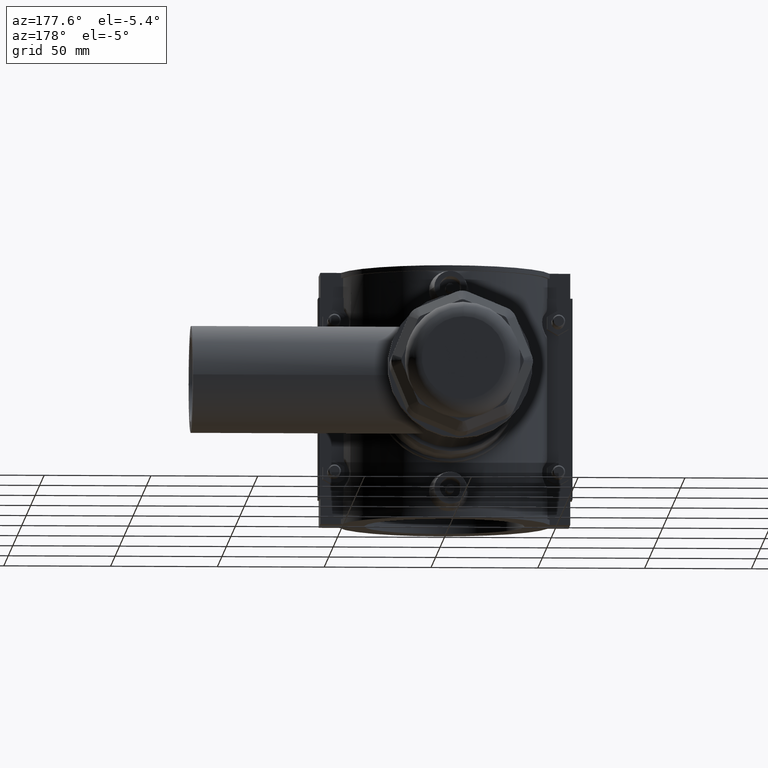
[diagram: clean part render]
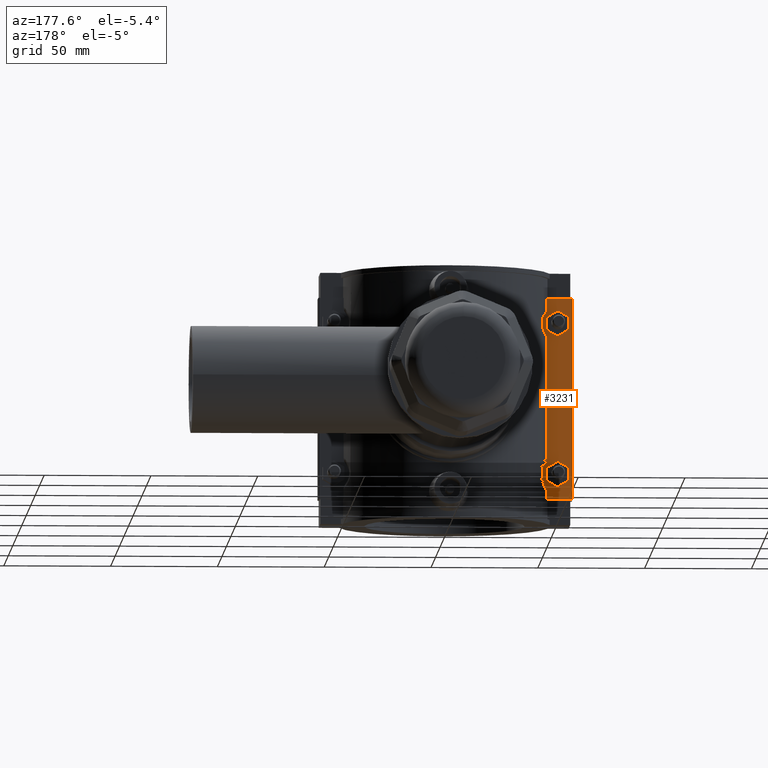
[diagram: same view with one face highlighted and labeled with its STEP entity id]
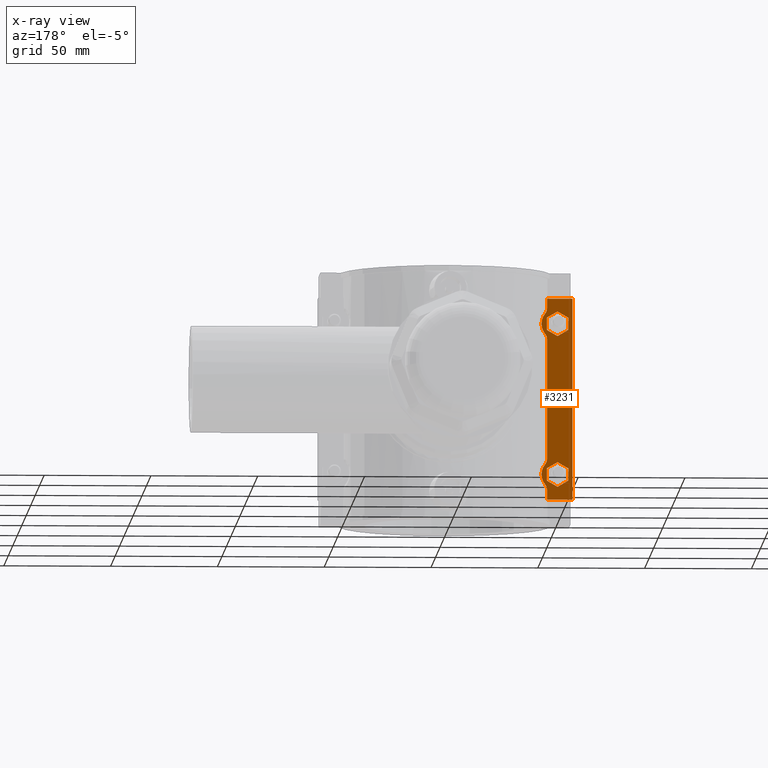
[diagram: x-ray of the same camera — body ghosted, the highlighted face saturated]
A machine part, auxiliary view. The second image highlights one B-rep face of the part: STEP entity #3231.
The next image is the same camera in x-ray: the body ghosted, the highlighted face saturated — about 0% of this face is hidden behind the body in this view.
In plain terms, the highlighted planar face has unit normal (-0, -1, 0).
Its self-contained STEP definition (entity closure, byte-faithful):
#137=LINE('',#5571,#424);
#138=LINE('',#5587,#425);
#139=LINE('',#5601,#426);
#156=LINE('',#5765,#443);
#157=LINE('',#5768,#444);
#161=LINE('',#5775,#448);
#162=LINE('',#5808,#449);
#163=LINE('',#5810,#450);
#164=LINE('',#5812,#451);
#165=LINE('',#5814,#452);
#166=LINE('',#5816,#453);
#167=LINE('',#5817,#454);
#168=LINE('',#5820,#455);
#169=LINE('',#5822,#456);
#170=LINE('',#5824,#457);
#171=LINE('',#5826,#458);
#172=LINE('',#5828,#459);
#173=LINE('',#5829,#460);
#424=VECTOR('',#4034,4.46607892172985);
#425=VECTOR('',#4035,56.1321578434597);
#426=VECTOR('',#4036,4.46607892172984);
#443=VECTOR('',#4069,11.8667986064342);
#444=VECTOR('',#4072,11.8667986064342);
#448=VECTOR('',#4078,94.4);
#449=VECTOR('',#4083,5.77350269189626);
#450=VECTOR('',#4084,5.77350269189626);
#451=VECTOR('',#4085,5.77350269189625);
#452=VECTOR('',#4086,5.77350269189626);
#453=VECTOR('',#4087,5.77350269189625);
#454=VECTOR('',#4088,5.77350269189626);
#455=VECTOR('',#4089,5.77350269189627);
#456=VECTOR('',#4090,5.77350269189626);
#457=VECTOR('',#4091,5.77350269189626);
#458=VECTOR('',#4092,5.77350269189626);
#459=VECTOR('',#4093,5.77350269189626);
#460=VECTOR('',#4094,5.77350269189624);
#644=FACE_BOUND('',#1066,.T.);
#645=FACE_BOUND('',#1067,.T.);
#699=B_SPLINE_CURVE_WITH_KNOTS('',3,(#5777,#5778,#5779,#5780,#5781,#5782),
 .UNSPECIFIED.,.F.,.F.,(4,2,4),(-0.281341691516308,-0.141623354296894,0.),
 .UNSPECIFIED.);
#700=B_SPLINE_CURVE_WITH_KNOTS('',3,(#5785,#5786,#5787,#5788,#5789,#5790),
 .UNSPECIFIED.,.F.,.F.,(4,2,4),(-0.281664898277297,-0.139591039339696,0.),
 .UNSPECIFIED.);
#701=B_SPLINE_CURVE_WITH_KNOTS('',3,(#5792,#5793,#5794,#5795,#5796,#5797),
 .UNSPECIFIED.,.F.,.F.,(4,2,4),(-0.281341691516304,-0.141623354296958,0.),
 .UNSPECIFIED.);
#702=B_SPLINE_CURVE_WITH_KNOTS('',3,(#5800,#5801,#5802,#5803,#5804,#5805),
 .UNSPECIFIED.,.F.,.F.,(4,2,4),(-0.281664898277248,-0.139591039340112,0.),
 .UNSPECIFIED.);
#851=FACE_OUTER_BOUND('',#1065,.T.);
#1065=EDGE_LOOP('',(#2464,#2465,#2466,#2467,#2468,#2469,#2470,#2471,#2472,
#2473,#2474,#2475));
#1066=EDGE_LOOP('',(#2476,#2477,#2478,#2479,#2480,#2481));
#1067=EDGE_LOOP('',(#2482,#2483,#2484,#2485,#2486,#2487));
#1282=CIRCLE('',#3497,7.5);
#1283=CIRCLE('',#3498,7.5);
#1459=VERTEX_POINT('',#5568);
#1460=VERTEX_POINT('',#5570);
#1461=VERTEX_POINT('',#5572);
#1462=VERTEX_POINT('',#5586);
#1463=VERTEX_POINT('',#5588);
#1464=VERTEX_POINT('',#5600);
#1487=VERTEX_POINT('',#5763);
#1488=VERTEX_POINT('',#5767);
#1491=VERTEX_POINT('',#5776);
#1492=VERTEX_POINT('',#5783);
#1493=VERTEX_POINT('',#5791);
#1494=VERTEX_POINT('',#5798);
#1495=VERTEX_POINT('',#5806);
#1496=VERTEX_POINT('',#5807);
#1497=VERTEX_POINT('',#5809);
#1498=VERTEX_POINT('',#5811);
#1499=VERTEX_POINT('',#5813);
#1500=VERTEX_POINT('',#5815);
#1501=VERTEX_POINT('',#5818);
#1502=VERTEX_POINT('',#5819);
#1503=VERTEX_POINT('',#5821);
#1504=VERTEX_POINT('',#5823);
#1505=VERTEX_POINT('',#5825);
#1506=VERTEX_POINT('',#5827);
#1819=EDGE_CURVE('',#1459,#1460,#137,.T.);
#1821=EDGE_CURVE('',#1461,#1462,#138,.T.);
#1823=EDGE_CURVE('',#1463,#1464,#139,.T.);
#1851=EDGE_CURVE('',#1459,#1487,#156,.T.);
#1852=EDGE_CURVE('',#1488,#1464,#157,.T.);
#1856=EDGE_CURVE('',#1487,#1488,#161,.T.);
#1857=EDGE_CURVE('',#1491,#1463,#699,.T.);
#1858=EDGE_CURVE('',#1492,#1491,#1282,.T.);
#1859=EDGE_CURVE('',#1462,#1492,#700,.T.);
#1860=EDGE_CURVE('',#1493,#1461,#701,.T.);
#1861=EDGE_CURVE('',#1494,#1493,#1283,.T.);
#1862=EDGE_CURVE('',#1460,#1494,#702,.T.);
#1863=EDGE_CURVE('',#1495,#1496,#162,.T.);
#1864=EDGE_CURVE('',#1497,#1495,#163,.T.);
#1865=EDGE_CURVE('',#1498,#1497,#164,.T.);
#1866=EDGE_CURVE('',#1499,#1498,#165,.T.);
#1867=EDGE_CURVE('',#1500,#1499,#166,.T.);
#1868=EDGE_CURVE('',#1496,#1500,#167,.T.);
#1869=EDGE_CURVE('',#1501,#1502,#168,.T.);
#1870=EDGE_CURVE('',#1503,#1501,#169,.T.);
#1871=EDGE_CURVE('',#1504,#1503,#170,.T.);
#1872=EDGE_CURVE('',#1505,#1504,#171,.T.);
#1873=EDGE_CURVE('',#1506,#1505,#172,.T.);
#1874=EDGE_CURVE('',#1502,#1506,#173,.T.);
#2464=ORIENTED_EDGE('',*,*,#1819,.F.);
#2465=ORIENTED_EDGE('',*,*,#1851,.T.);
#2466=ORIENTED_EDGE('',*,*,#1856,.T.);
#2467=ORIENTED_EDGE('',*,*,#1852,.T.);
#2468=ORIENTED_EDGE('',*,*,#1823,.F.);
#2469=ORIENTED_EDGE('',*,*,#1857,.F.);
#2470=ORIENTED_EDGE('',*,*,#1858,.F.);
#2471=ORIENTED_EDGE('',*,*,#1859,.F.);
#2472=ORIENTED_EDGE('',*,*,#1821,.F.);
#2473=ORIENTED_EDGE('',*,*,#1860,.F.);
#2474=ORIENTED_EDGE('',*,*,#1861,.F.);
#2475=ORIENTED_EDGE('',*,*,#1862,.F.);
#2476=ORIENTED_EDGE('',*,*,#1863,.F.);
#2477=ORIENTED_EDGE('',*,*,#1864,.F.);
#2478=ORIENTED_EDGE('',*,*,#1865,.F.);
#2479=ORIENTED_EDGE('',*,*,#1866,.F.);
#2480=ORIENTED_EDGE('',*,*,#1867,.F.);
#2481=ORIENTED_EDGE('',*,*,#1868,.F.);
#2482=ORIENTED_EDGE('',*,*,#1869,.F.);
#2483=ORIENTED_EDGE('',*,*,#1870,.F.);
#2484=ORIENTED_EDGE('',*,*,#1871,.F.);
#2485=ORIENTED_EDGE('',*,*,#1872,.F.);
#2486=ORIENTED_EDGE('',*,*,#1873,.F.);
#2487=ORIENTED_EDGE('',*,*,#1874,.F.);
#3078=PLANE('',#3496);
#3231=ADVANCED_FACE('',(#851,#644,#645),#3078,.F.);
#3496=AXIS2_PLACEMENT_3D('',#5774,#4076,#4077);
#3497=AXIS2_PLACEMENT_3D('',#5784,#4079,#4080);
#3498=AXIS2_PLACEMENT_3D('',#5799,#4081,#4082);
#4034=DIRECTION('',(0.,0.,1.));
#4035=DIRECTION('',(0.,0.,1.));
#4036=DIRECTION('',(0.,0.,1.));
#4069=DIRECTION('',(-1.,2.21752824892278E-16,0.));
#4072=DIRECTION('',(1.,-2.21752824892278E-16,0.));
#4076=DIRECTION('center_axis',(-2.21752824892278E-16,-1.,0.));
#4077=DIRECTION('ref_axis',(1.,-1.77635683940025E-16,0.));
#4078=DIRECTION('',(0.,0.,1.));
#4079=DIRECTION('center_axis',(-2.21752824892278E-16,-1.,0.));
#4080=DIRECTION('ref_axis',(1.,0.,0.));
#4081=DIRECTION('center_axis',(-2.21752824892278E-16,-1.,0.));
#4082=DIRECTION('ref_axis',(1.,0.,0.));
#4083=DIRECTION('',(-0.866025403784439,1.92043579717675E-16,0.5));
#4084=DIRECTION('',(-0.866025403784438,1.92043579717675E-16,-0.5));
#4085=DIRECTION('',(0.,0.,-1.));
#4086=DIRECTION('',(0.866025403784439,-1.92043579717675E-16,-0.5));
#4087=DIRECTION('',(0.866025403784439,-1.92043579717675E-16,0.499999999999999));
#4088=DIRECTION('',(0.,0.,1.));
#4089=DIRECTION('',(-0.866025403784439,1.92043579717675E-16,-0.499999999999999));
#4090=DIRECTION('',(0.,0.,-1.));
#4091=DIRECTION('',(0.866025403784438,-1.92043579717675E-16,-0.5));
#4092=DIRECTION('',(0.866025403784438,-1.92043579717675E-16,0.5));
#4093=DIRECTION('',(0.,0.,1.));
#4094=DIRECTION('',(-0.866025403784438,1.92043579717675E-16,0.500000000000002));
#5568=CARTESIAN_POINT('',(-47.6332013935658,10.3750000000001,-47.2));
#5570=CARTESIAN_POINT('',(-47.6332013935658,10.3750000000001,-42.7339210782702));
#5571=CARTESIAN_POINT('',(-47.6332013935658,10.3750000000001,0.));
#5572=CARTESIAN_POINT('',(-47.6332013935658,10.3750000000001,-28.0660789217298));
#5586=CARTESIAN_POINT('',(-47.6332013935658,10.3750000000001,28.0660789217298));
#5587=CARTESIAN_POINT('',(-47.6332013935658,10.3750000000001,0.));
#5588=CARTESIAN_POINT('',(-47.6332013935658,10.3750000000001,42.7339210782702));
#5600=CARTESIAN_POINT('',(-47.6332013935658,10.3750000000001,47.2));
#5601=CARTESIAN_POINT('',(-47.6332013935658,10.3750000000001,0.));
#5763=CARTESIAN_POINT('',(-59.5,10.3750000000001,-47.2));
#5765=CARTESIAN_POINT('',(-59.5,10.3750000000001,-47.2));
#5767=CARTESIAN_POINT('',(-59.5,10.3750000000001,47.2));
#5768=CARTESIAN_POINT('',(-59.5,10.3750000000001,47.2));
#5774=CARTESIAN_POINT('Origin',(-59.5,10.3750000000001,0.));
#5775=CARTESIAN_POINT('',(-59.5,10.3750000000001,0.));
#5776=CARTESIAN_POINT('',(-46.6917749070217,10.3750000000001,40.1449469195448));
#5777=CARTESIAN_POINT('Ctrl Pts',(-46.6917749070217,10.3750000000001,40.1449469195447));
#5778=CARTESIAN_POINT('Ctrl Pts',(-46.9867600894085,10.3750000000001,40.5060342757254));
#5779=CARTESIAN_POINT('Ctrl Pts',(-47.2216357502822,10.3750000000373,40.9133637162786));
#5780=CARTESIAN_POINT('Ctrl Pts',(-47.5469390920101,10.3750000000373,41.7937134726198));
#5781=CARTESIAN_POINT('Ctrl Pts',(-47.6332013935658,10.3750000000001,42.2618432306138));
#5782=CARTESIAN_POINT('Ctrl Pts',(-47.6332013935658,10.3750000000001,42.7339210782702));
#5783=CARTESIAN_POINT('',(-46.6917749070217,10.3750000000001,30.6550530804553));
#5784=CARTESIAN_POINT('Origin',(-52.5,10.3750000000001,35.4));
#5785=CARTESIAN_POINT('Ctrl Pts',(-47.6332013935658,10.3750000000001,28.0660789217298));
#5786=CARTESIAN_POINT('Ctrl Pts',(-47.6332013935658,10.3750000000001,28.5391150085961));
#5787=CARTESIAN_POINT('Ctrl Pts',(-47.5465890169901,10.3749999997142,29.008179282616));
#5788=CARTESIAN_POINT('Ctrl Pts',(-47.2206731564448,10.3749999997142,29.8883067758346));
#5789=CARTESIAN_POINT('Ctrl Pts',(-46.9861536057377,10.3750000000001,30.2947081127007));
#5790=CARTESIAN_POINT('Ctrl Pts',(-46.6917749070217,10.3750000000001,30.6550530804553));
#5791=CARTESIAN_POINT('',(-46.6917749070217,10.3750000000001,-30.6550530804553));
#5792=CARTESIAN_POINT('Ctrl Pts',(-46.6917749070217,10.3750000000001,-30.6550530804553));
#5793=CARTESIAN_POINT('Ctrl Pts',(-46.9867600894084,10.3750000000001,-30.2939657242748));
#5794=CARTESIAN_POINT('Ctrl Pts',(-47.221635750282,10.3750000000373,-29.8866362837218));
#5795=CARTESIAN_POINT('Ctrl Pts',(-47.54693909201,10.3750000000373,-29.0062865273806));
#5796=CARTESIAN_POINT('Ctrl Pts',(-47.6332013935658,10.3750000000001,-28.5381567693864));
#5797=CARTESIAN_POINT('Ctrl Pts',(-47.6332013935658,10.3750000000001,-28.0660789217299));
#5798=CARTESIAN_POINT('',(-46.6917749070217,10.3750000000001,-40.1449469195447));
#5799=CARTESIAN_POINT('Origin',(-52.5,10.3750000000001,-35.4));
#5800=CARTESIAN_POINT('Ctrl Pts',(-47.6332013935658,10.3750000000001,-42.7339210782702));
#5801=CARTESIAN_POINT('Ctrl Pts',(-47.6332013935658,10.3750000000001,-42.2608849914054));
#5802=CARTESIAN_POINT('Ctrl Pts',(-47.5465890169907,10.3749999997142,-41.7918207173869));
#5803=CARTESIAN_POINT('Ctrl Pts',(-47.2206731564463,10.3749999997142,-40.9116932241679));
#5804=CARTESIAN_POINT('Ctrl Pts',(-46.9861536057385,10.3750000000001,-40.5052918873004));
#5805=CARTESIAN_POINT('Ctrl Pts',(-46.6917749070217,10.3750000000001,-40.1449469195447));
#5806=CARTESIAN_POINT('',(-52.5000000000001,10.3750000000001,29.6264973081037));
#5807=CARTESIAN_POINT('',(-57.5000000000001,10.3750000000001,32.5132486540519));
#5808=CARTESIAN_POINT('',(-51.2106751765078,10.3750000000001,28.8821052741876));
#5809=CARTESIAN_POINT('',(-47.5000000000001,10.3750000000001,32.5132486540519));
#5810=CARTESIAN_POINT('',(-61.5393248234923,10.3750000000001,24.407640687968));
#5811=CARTESIAN_POINT('',(-47.5000000000001,10.3750000000001,38.2867513459481));
#5812=CARTESIAN_POINT('',(-47.5000000000001,10.3750000000001,16.2566243270259));
#5813=CARTESIAN_POINT('',(-52.5000000000001,10.3750000000001,41.1735026918963));
#5814=CARTESIAN_POINT('',(-43.7106751765078,10.3750000000001,36.0989836390579));
#5815=CARTESIAN_POINT('',(-57.5000000000001,10.3750000000001,38.2867513459481));
#5816=CARTESIAN_POINT('',(-64.0393248234923,10.3750000000001,34.5112703987865));
#5817=CARTESIAN_POINT('',(-57.5000000000001,10.3750000000001,19.1433756729741));
#5818=CARTESIAN_POINT('',(-47.5,10.3750000000001,-38.2867513459481));
#5819=CARTESIAN_POINT('',(-52.5000000000001,10.3750000000001,-41.1735026918963));
#5820=CARTESIAN_POINT('',(-46.2106751765078,10.3750000000001,-37.542359312032));
#5821=CARTESIAN_POINT('',(-47.5,10.3750000000001,-32.5132486540519));
#5822=CARTESIAN_POINT('',(-47.5,10.3750000000001,-19.1433756729741));
#5823=CARTESIAN_POINT('',(-52.5,10.3750000000001,-29.6264973081037));
#5824=CARTESIAN_POINT('',(-59.0393248234923,10.3750000000001,-25.8510163609421));
#5825=CARTESIAN_POINT('',(-57.5,10.3750000000001,-32.5132486540519));
#5826=CARTESIAN_POINT('',(-48.7106751765077,10.3750000000001,-27.4387296012135));
#5827=CARTESIAN_POINT('',(-57.5,10.3750000000001,-38.2867513459481));
#5828=CARTESIAN_POINT('',(-57.5,10.3750000000001,-16.2566243270259));
#5829=CARTESIAN_POINT('',(-66.5393248234923,10.3750000000001,-33.0678947258124));